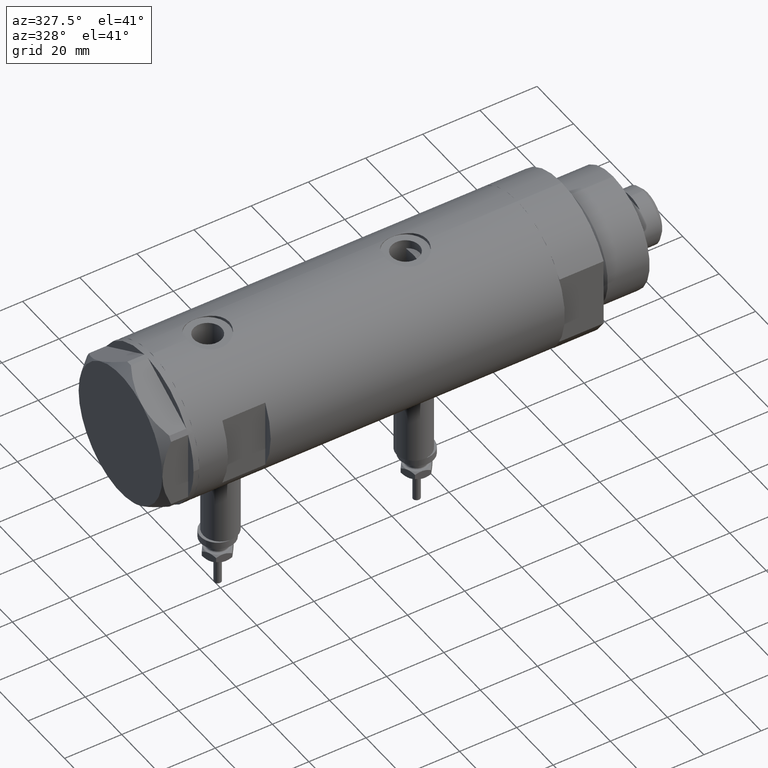
[diagram: clean part render]
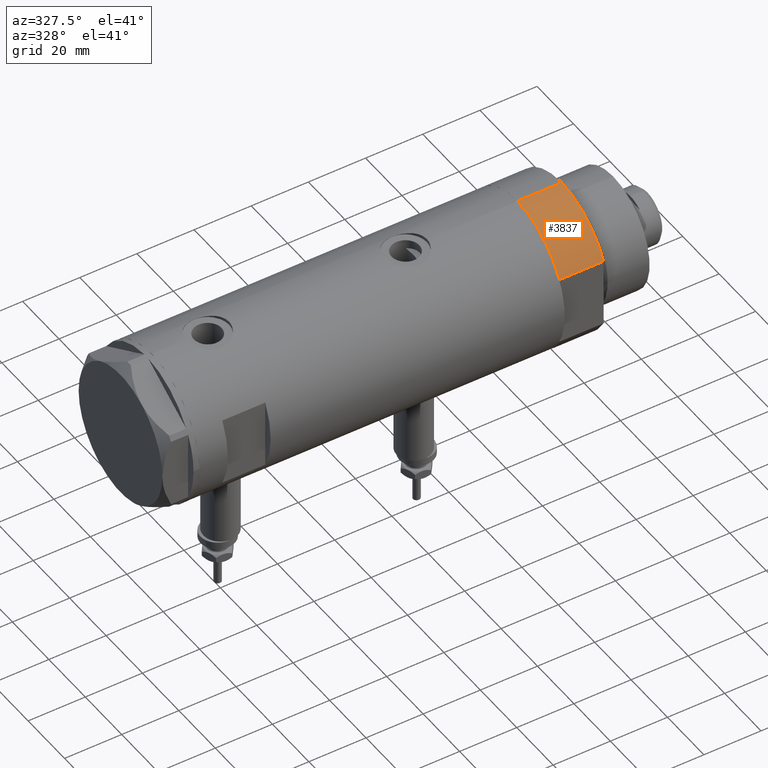
[diagram: same view with one face highlighted and labeled with its STEP entity id]
A machine part, auxiliary view. The second image highlights one B-rep face of the part: STEP entity #3837.
In plain terms, the highlighted cylindrical surface (partial cylindrical patch) has radius 26 mm, axis along (-1, -0, 0).
Its self-contained STEP definition (entity closure, byte-faithful):
#88 = CARTESIAN_POINT ( 'NONE',  ( -26.00000000000000355, 0.000000000000000000, 0.000000000000000000 ) ) ;
#280 = LINE ( 'NONE', #3141, #2140 ) ;
#397 = EDGE_CURVE ( 'NONE', #5657, #4537, #3012, .T. ) ;
#455 = CARTESIAN_POINT ( 'NONE',  ( 0.000000000000000000, 0.000000000000000000, 0.000000000000000000 ) ) ;
#466 = ORIENTED_EDGE ( 'NONE', *, *, #4820, .T. ) ;
#697 = LINE ( 'NONE', #4998, #4727 ) ;
#1087 = EDGE_CURVE ( 'NONE', #5657, #5840, #280, .T. ) ;
#1264 = DIRECTION ( 'NONE',  ( -0.000000000000000000, -0.000000000000000000, -1.000000000000000000 ) ) ;
#1330 = CARTESIAN_POINT ( 'NONE',  ( -26.00000000000000355, 0.000000000000000000, 15.50000000000000000 ) ) ;
#1407 = DIRECTION ( 'NONE',  ( 1.000000000000000000, 0.000000000000000000, 0.000000000000000000 ) ) ;
#1546 = VERTEX_POINT ( 'NONE', #5170 ) ;
#1804 = DIRECTION ( 'NONE',  ( -0.000000000000000000, -0.000000000000000000, -1.000000000000000000 ) ) ;
#2140 = VECTOR ( 'NONE', #1264, 1000.000000000000000 ) ;
#2289 = FACE_OUTER_BOUND ( 'NONE', #3858, .T. ) ;
#2368 = DIRECTION ( 'NONE',  ( 0.000000000000000000, 0.000000000000000000, 1.000000000000000000 ) ) ;
#2659 = AXIS2_PLACEMENT_3D ( 'NONE', #3240, #1804, #5199 ) ;
#3012 = CIRCLE ( 'NONE', #3724, 26.00000000000000355 ) ;
#3141 = CARTESIAN_POINT ( 'NONE',  ( -26.00000000000000355, 0.000000000000000000, 15.50000000000000000 ) ) ;
#3240 = CARTESIAN_POINT ( 'NONE',  ( 0.000000000000000000, 0.000000000000000000, 15.50000000000000000 ) ) ;
#3283 = AXIS2_PLACEMENT_3D ( 'NONE', #455, #2368, #1407 ) ;
#3447 = ORIENTED_EDGE ( 'NONE', *, *, #1087, .T. ) ;
#3724 = AXIS2_PLACEMENT_3D ( 'NONE', #3947, #5958, #4465 ) ;
#3837 = ADVANCED_FACE ( 'NONE', ( #2289 ), #4305, .T. ) ;
#3858 = EDGE_LOOP ( 'NONE', ( #5161, #3447, #466, #4283 ) ) ;
#3947 = CARTESIAN_POINT ( 'NONE',  ( 0.000000000000000000, 0.000000000000000000, 15.50000000000000000 ) ) ;
#4059 = CARTESIAN_POINT ( 'NONE',  ( -12.12435565298215323, -22.99999999999999645, 15.50000000000000000 ) ) ;
#4283 = ORIENTED_EDGE ( 'NONE', *, *, #4555, .T. ) ;
#4305 = CYLINDRICAL_SURFACE ( 'NONE', #2659, 26.00000000000000355 ) ;
#4465 = DIRECTION ( 'NONE',  ( 1.000000000000000000, 0.000000000000000000, 0.000000000000000000 ) ) ;
#4537 = VERTEX_POINT ( 'NONE', #4059 ) ;
#4555 = EDGE_CURVE ( 'NONE', #1546, #4537, #697, .T. ) ;
#4727 = VECTOR ( 'NONE', #5534, 1000.000000000000000 ) ;
#4820 = EDGE_CURVE ( 'NONE', #5840, #1546, #6038, .T. ) ;
#4998 = CARTESIAN_POINT ( 'NONE',  ( -12.12435565298215145, -22.99999999999999645, 0.000000000000000000 ) ) ;
#5161 = ORIENTED_EDGE ( 'NONE', *, *, #397, .F. ) ;
#5170 = CARTESIAN_POINT ( 'NONE',  ( -12.12435565298215501, -22.99999999999999645, 0.000000000000000000 ) ) ;
#5199 = DIRECTION ( 'NONE',  ( -1.000000000000000000, 0.000000000000000000, 0.000000000000000000 ) ) ;
#5534 = DIRECTION ( 'NONE',  ( -0.000000000000000000, -0.000000000000000000, 1.000000000000000000 ) ) ;
#5657 = VERTEX_POINT ( 'NONE', #1330 ) ;
#5840 = VERTEX_POINT ( 'NONE', #88 ) ;
#5958 = DIRECTION ( 'NONE',  ( 0.000000000000000000, 0.000000000000000000, 1.000000000000000000 ) ) ;
#6038 = CIRCLE ( 'NONE', #3283, 26.00000000000000355 ) ;